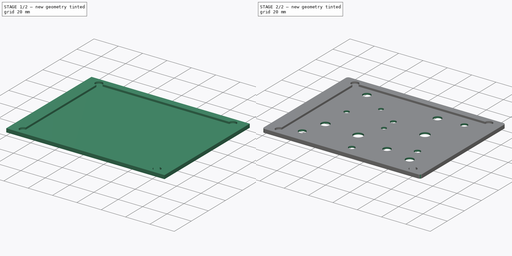
[diagram: build sequence overview — one tinted view per stage of 2, left to right]
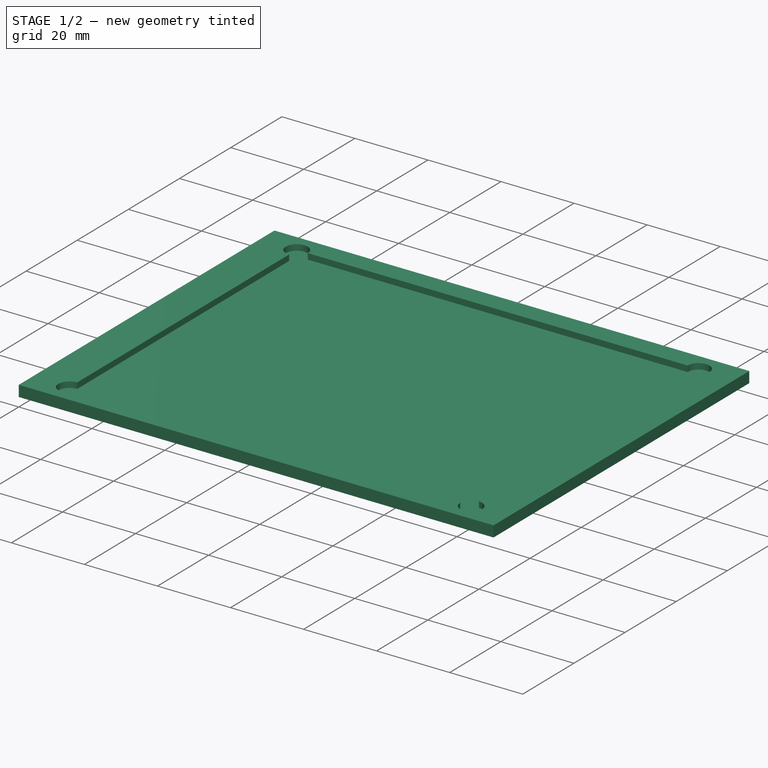
[diagram: stage 1 of 2 — iso view after this stage's code; geometry added in this stage tinted green]
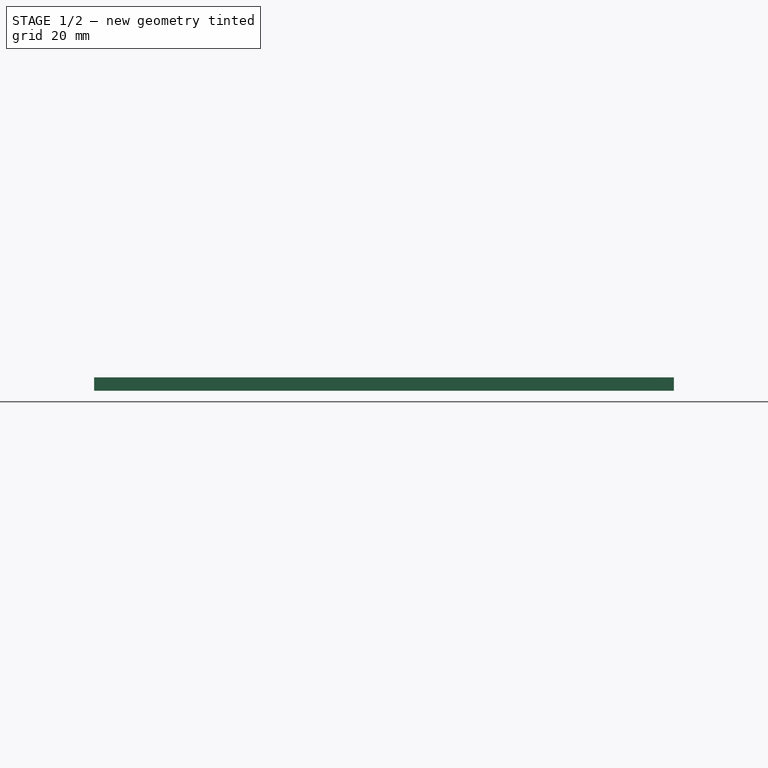
[diagram: stage 1 of 2 — front view after this stage's code; geometry added in this stage tinted green]
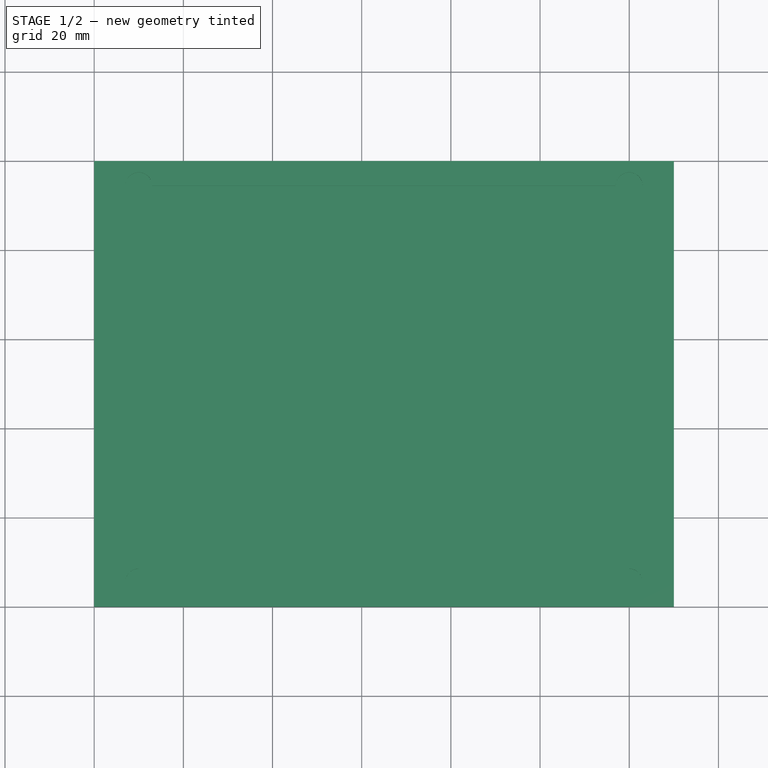
[diagram: stage 1 of 2 — top view after this stage's code; geometry added in this stage tinted green]
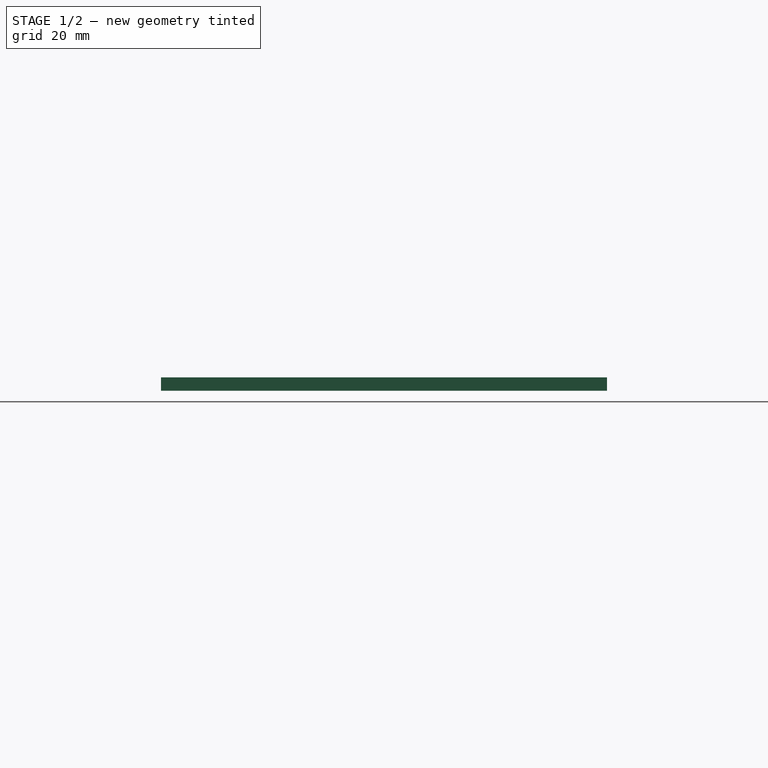
[diagram: stage 1 of 2 — right view after this stage's code; geometry added in this stage tinted green]
FCSTD DOCUMENT  (FreeCAD 0.20RUnknown)
Label: pcb-jig-507-807
License: All rights reserved
LicenseURL: http://en.wikipedia.org/wiki/All_rights_reserved
objects: Sketcher::SketchObject×3, PartDesign::Pocket×2, PartDesign::Pad×1, PartDesign::Fillet×1, PartDesign::Body×1
note: 12 computed .brp shape members not serialized (recipe doc carries the construction recipe); baked Part::Feature solids carry a one-line shape summary decoded from their .brp

FEATURE [Sketcher::SketchObject] Sketch
  FullyConstrained = true
  MapMode = 5
  Support = -> [XY_Plane]
  sketch-geometry (11):
    g0: LineSegment StartX=0 StartY=0 StartZ=0 EndX=130 EndY=0 EndZ=0
    g1: LineSegment StartX=130 StartY=0 StartZ=0 EndX=130 EndY=100 EndZ=0
    g2: LineSegment StartX=130 StartY=100 StartZ=0 EndX=0 EndY=100 EndZ=0
    g3: LineSegment StartX=0 StartY=100 StartZ=0 EndX=0 EndY=0 EndZ=0
    g4: LineSegment StartX=10 StartY=94.45 StartZ=0 EndX=120 EndY=94.45 EndZ=0
    g5: LineSegment StartX=120 StartY=94.45 StartZ=0 EndX=120 EndY=5.55 EndZ=0
    g6: LineSegment StartX=120 StartY=5.55 StartZ=0 EndX=10 EndY=5.55 EndZ=0
    g7: LineSegment StartX=10 StartY=5.55 StartZ=0 EndX=10 EndY=94.45 EndZ=0
    g8: LineSegment StartX=10 StartY=94.45 StartZ=0 EndX=0 EndY=100 EndZ=0
    g9: LineSegment StartX=120 StartY=94.45 StartZ=0 EndX=130 EndY=100 EndZ=0
    g10: LineSegment StartX=120 StartY=5.55 StartZ=0 EndX=130 EndY=0 EndZ=0
  constraints (29):
    c: Coincident(g0,g1)
    c: Coincident(g1,g2)
    c: Coincident(g2,g3)
    c: Coincident(g3,g0)
    c: Horizontal(g0)
    c: Horizontal(g2)
    c: Vertical(g1)
    c: Vertical(g3)
    c: Coincident(g0,g-1)
    c: DistanceY(g1,g1) = 100
    c: DistanceX(g0,g0) = 130
    c: Coincident(g4,g5)
    c: Coincident(g5,g6)
    c: Coincident(g6,g7)
    c: Coincident(g7,g4)
    c: Horizontal(g4)
    c: Horizontal(g6)
    c: Vertical(g5)
    c: Vertical(g7)
    c: DistanceX(g4,g4) = 110
    c: DistanceY(g7,g7) = 88.9
    c: Coincident(g8,g4)
    c: Coincident(g8,g2)
    c: Coincident(g9,g4)
    c: Coincident(g9,g1)
    c: Coincident(g10,g5)
    c: Coincident(g10,g0)
    c: Equal(g9,g10)
    c: Equal(g10,g8)
FEATURE [PartDesign::Pad] Pad
  Direction = (0,0,1)
  Length = 3
  Length2 = 10
  Profile = -> Sketch
  ReferenceAxis = -> Sketch [N_Axis]
  Type = 0
FEATURE [Sketcher::SketchObject] Sketch001
  ExternalGeometry = -> [Pad]
  FullyConstrained = true
  MapMode = 5
  Placement = pos=(0,0,3) rot=(0,0,1;0rad)
  Support = -> [Pad]
  sketch-geometry (15):
    g0: LineSegment StartX=10 StartY=94.45 StartZ=0 EndX=120 EndY=94.45 EndZ=0
    g1: LineSegment StartX=120 StartY=94.45 StartZ=0 EndX=120 EndY=5.55 EndZ=0
    g2: LineSegment StartX=120 StartY=5.55 StartZ=0 EndX=10 EndY=5.55 EndZ=0
    g3: LineSegment StartX=10 StartY=5.55 StartZ=0 EndX=10 EndY=94.45 EndZ=0
    g4: LineSegment StartX=120 StartY=94.45 StartZ=0 EndX=130 EndY=100 EndZ=0
    g5: LineSegment StartX=120 StartY=5.55 StartZ=0 EndX=130 EndY=0 EndZ=0
    g6: LineSegment StartX=0 StartY=0 StartZ=0 EndX=10 EndY=5.55 EndZ=0
    g7: ArcOfCircle CenterX=120 CenterY=5.55 CenterZ=0 NormalX=0 NormalY=0 NormalZ=1 AngleXU=0 Radius=3 StartAngle=3.14159 EndAngle=7.85398
    g8: LineSegment StartX=13 StartY=94.45 StartZ=0 EndX=117 EndY=94.45 EndZ=0
    g9: LineSegment StartX=120 StartY=91.45 StartZ=0 EndX=120 EndY=8.55 EndZ=0
    g10: LineSegment StartX=117 StartY=5.55 StartZ=0 EndX=13 EndY=5.55 EndZ=0
    g11: LineSegment StartX=10 StartY=8.55 StartZ=0 EndX=10 EndY=91.45 EndZ=0
    g12: ArcOfCircle CenterX=10 CenterY=94.45 CenterZ=0 NormalX=0 NormalY=0 NormalZ=1 AngleXU=0 Radius=3 StartAngle=2e-16 EndAngle=4.71239
    g13: ArcOfCircle CenterX=10 CenterY=5.55 CenterZ=0 NormalX=0 NormalY=0 NormalZ=1 AngleXU=0 Radius=3 StartAngle=1.5708 EndAngle=6.28319
    g14: ArcOfCircle CenterX=120 CenterY=94.45 CenterZ=0 NormalX=0 NormalY=0 NormalZ=1 AngleXU=0 Radius=3 StartAngle=4.71239 EndAngle=9.42478
  constraints (42):
    c: Coincident(g0,g1)
    c: Coincident(g1,g2)
    c: Coincident(g2,g3)
    c: Coincident(g3,g0)
    c: Horizontal(g0)
    c: Horizontal(g2)
    c: Vertical(g1)
    c: Vertical(g3)
    c: Coincident(g4,g0)
    c: Coincident(g4,g-3)
    c: Coincident(g5,g1)
    c: Coincident(g5,g-4)
    c: Coincident(g6,g-1)
    c: Coincident(g6,g2)
    c: Equal(g6,g5)
    c: Equal(g5,g4)
    c: DistanceX(g0,g0) = 110
    c: DistanceY(g1,g1) = 88.9
    c: PointOnObject(g8,g0)
    c: PointOnObject(g11,g3)
    c: PointOnObject(g11,g3)
    c: PointOnObject(g10,g2)
    c: Coincident(g7,g1)
    c: PointOnObject(g7,g2)
    c: PointOnObject(g7,g1)
    c: PointOnObject(g9,g1)
    c: PointOnObject(g8,g0)
    c: Coincident(g9,g7)
    c: Coincident(g10,g7)
    c: Coincident(g12,g0)
    c: Coincident(g12,g8)
    c: Coincident(g11,g12)
    c: Coincident(g13,g2)
    c: Coincident(g13,g10)
    c: Coincident(g13,g11)
    c: Coincident(g14,g0)
    c: Coincident(g14,g9)
    c: Coincident(g14,g8)
    c: Radius(g12) = 3
    c: Radius(g13) = 3
    c: Radius(g7) = 3
    c: Radius(g14) = 3
FEATURE [PartDesign::Pocket] Pocket
  BaseFeature = -> Pad
  Direction = (0,0,-1)
  Length = 1.6
  Length2 = 5
  Profile = -> Sketch001
  ReferenceAxis = -> Sketch001 [N_Axis]
  Type = 0
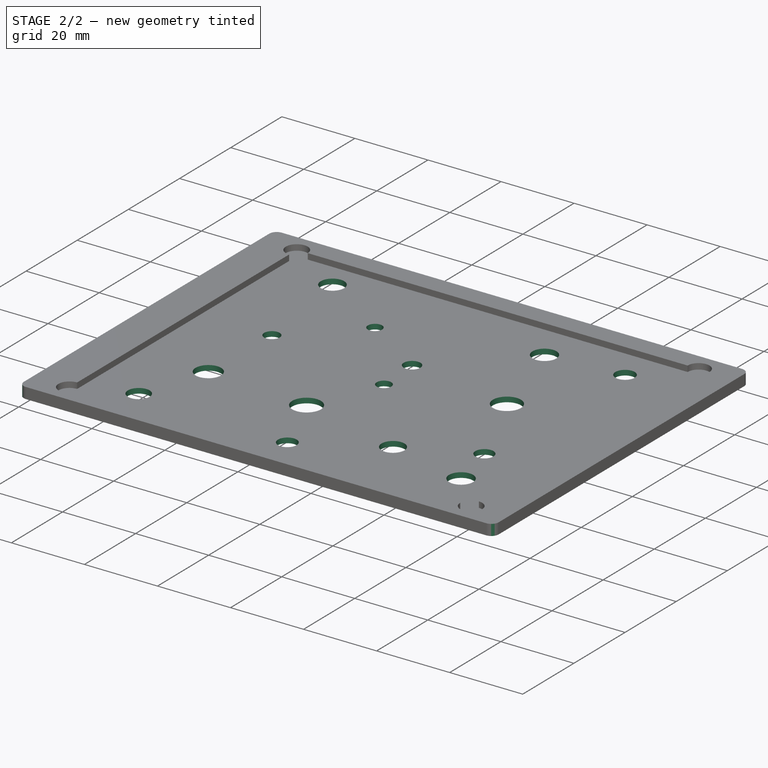
[diagram: stage 2 of 2 — iso view after this stage's code; geometry added in this stage tinted green]
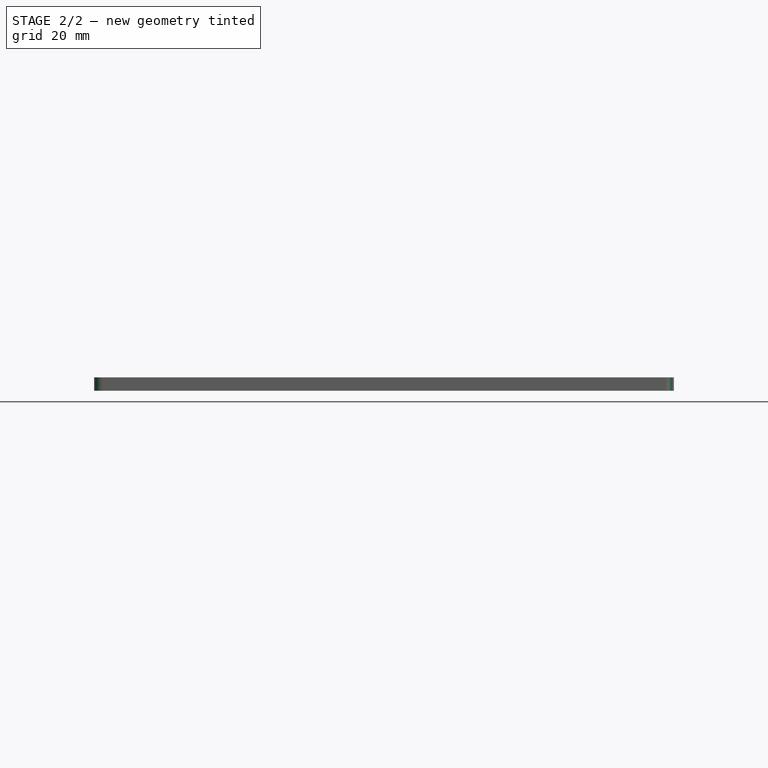
[diagram: stage 2 of 2 — front view after this stage's code; geometry added in this stage tinted green]
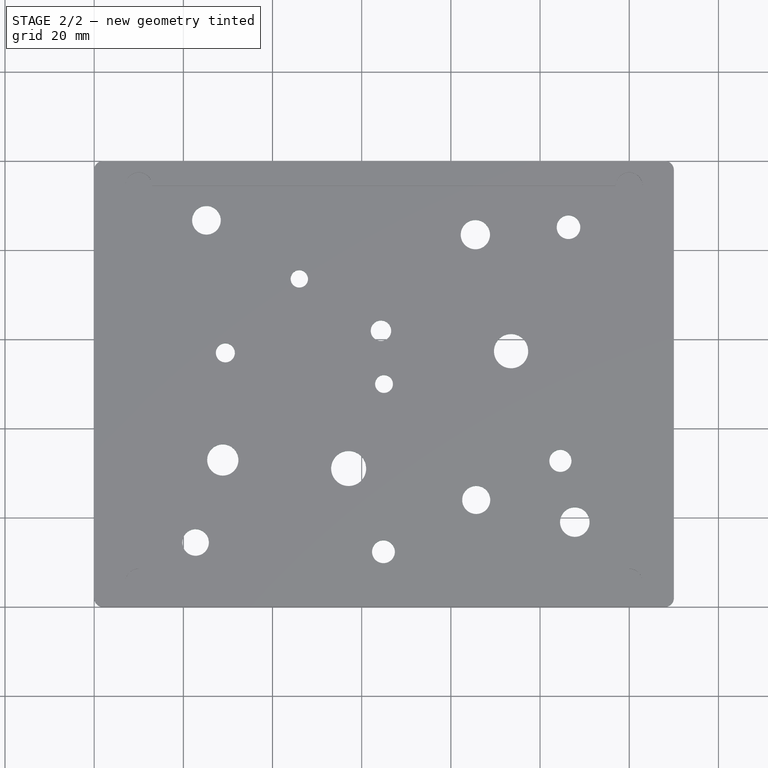
[diagram: stage 2 of 2 — top view after this stage's code; geometry added in this stage tinted green]
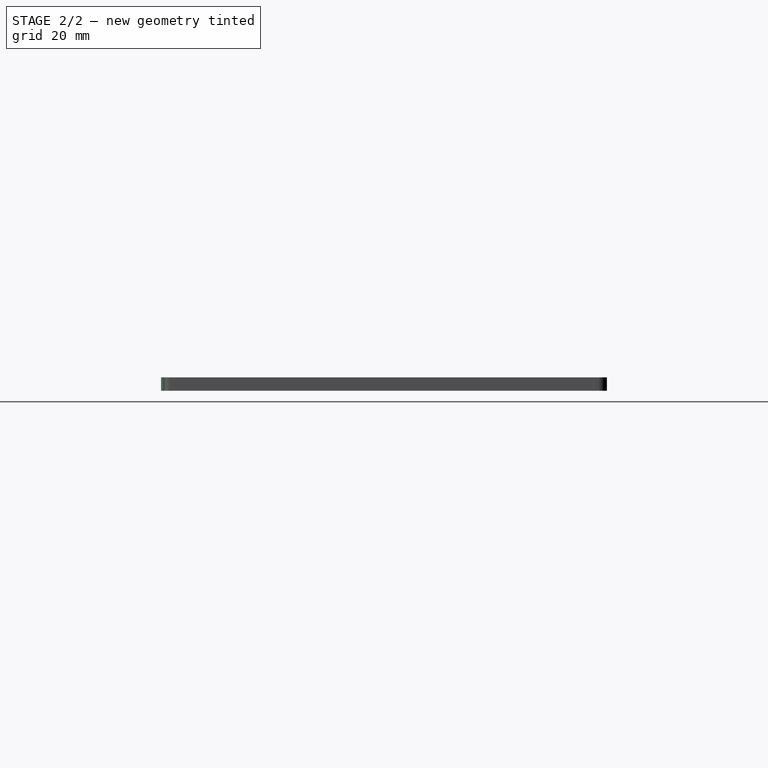
[diagram: stage 2 of 2 — right view after this stage's code; geometry added in this stage tinted green]
FEATURE [Sketcher::SketchObject] Sketch002
  ExternalGeometry = -> [Pocket]
  FullyConstrained = false
  MapMode = 5
  Placement = pos=(0,0,0) rot=(1,0,0;3.14159rad)
  Support = -> [Pocket]
  sketch-geometry (20):
    g0: LineSegment StartX=0 StartY=-50 StartZ=0 EndX=130 EndY=-50 EndZ=0
    g1: LineSegment StartX=0 StartY=0 StartZ=0 EndX=130 EndY=-50 EndZ=0
    g2: LineSegment StartX=130 StartY=-50 StartZ=0 EndX=0 EndY=-100 EndZ=0
    g3: Circle CenterX=65 CenterY=-50 CenterZ=0 NormalX=0 NormalY=0 NormalZ=1 AngleXU=0 Radius=2
    g4: LineSegment StartX=65 StartY=-50 StartZ=0 EndX=0 EndY=-100 EndZ=0
    g5: LineSegment StartX=65 StartY=-50 StartZ=0 EndX=130 EndY=-100 EndZ=0
    g6: Circle CenterX=28.8449 CenterY=-32.9588 CenterZ=0 NormalX=0 NormalY=0 NormalZ=1 AngleXU=0 Radius=3.50122
    g7: Circle CenterX=85.6805 CenterY=-23.9948 CenterZ=0 NormalX=0 NormalY=0 NormalZ=1 AngleXU=0 Radius=3.1455
    g8: Circle CenterX=93.5002 CenterY=-57.3715 CenterZ=0 NormalX=0 NormalY=0 NormalZ=1 AngleXU=0 Radius=3.83824
    g9: Circle CenterX=85.4898 CenterY=-83.5006 CenterZ=0 NormalX=0 NormalY=0 NormalZ=1 AngleXU=0 Radius=3.28132
    g10: Circle CenterX=64.3195 CenterY=-61.9488 CenterZ=0 NormalX=0 NormalY=0 NormalZ=1 AngleXU=0 Radius=2.28869
    g11: Circle CenterX=46.01 CenterY=-73.583 CenterZ=0 NormalX=0 NormalY=0 NormalZ=1 AngleXU=0 Radius=1.94501
    g12: Circle CenterX=29.417 CenterY=-56.99 CenterZ=0 NormalX=0 NormalY=0 NormalZ=1 AngleXU=0 Radius=2.13236
    g13: Circle CenterX=57.072 CenterY=-31.0516 CenterZ=0 NormalX=0 NormalY=0 NormalZ=1 AngleXU=0 Radius=3.92724
    g14: Circle CenterX=64.8788 CenterY=-12.3738 CenterZ=0 NormalX=0 NormalY=0 NormalZ=1 AngleXU=0 Radius=2.55883
    g15: Circle CenterX=22.7417 CenterY=-14.4586 CenterZ=0 NormalX=0 NormalY=0 NormalZ=1 AngleXU=0 Radius=2.9792
    g16: Circle CenterX=104.562 CenterY=-32.7681 CenterZ=0 NormalX=0 NormalY=0 NormalZ=1 AngleXU=0 Radius=2.47941
    g17: Circle CenterX=106.377 CenterY=-85.1693 CenterZ=0 NormalX=0 NormalY=0 NormalZ=1 AngleXU=0 Radius=2.64807
    g18: Circle CenterX=25.1783 CenterY=-86.7261 CenterZ=0 NormalX=0 NormalY=0 NormalZ=1 AngleXU=0 Radius=3.21275
    g19: Circle CenterX=107.792 CenterY=-19.0288 CenterZ=0 NormalX=0 NormalY=0 NormalZ=1 AngleXU=0 Radius=3.30964
  constraints (16):
    c: PointOnObject(g0,g-2)
    c: PointOnObject(g0,g-3)
    c: Horizontal(g0)
    c: Coincident(g1,g-1)
    c: Coincident(g1,g0)
    c: Coincident(g2,g0)
    c: Coincident(g2,g-4)
    c: Equal(g2,g1)
    c: PointOnObject(g3,g0)
    c: Coincident(g4,g3)
    c: Coincident(g4,g2)
    c: Coincident(g5,g3)
    c: Coincident(g5,g-4)
    c: Equal(g5,g4)
    c: Radius(g3) = 2
    c: Tangent(g17,g5)
FEATURE [PartDesign::Pocket] Pocket001
  BaseFeature = -> Pocket
  Direction = (0,0,1)
  Length = 5
  Length2 = 5
  Profile = -> Sketch002
  ReferenceAxis = -> Sketch002 [N_Axis]
  Type = 1
FEATURE [PartDesign::Fillet] Fillet
  Base = -> Pocket001 [Edge2,Edge1,Edge8,Edge5]
  BaseFeature = -> Pocket001
  Radius = 2
  SupportTransform = false
  UseAllEdges = false
FEATURE [PartDesign::Body] Body
  Group = -> [Sketch,Pad,Sketch001,Pocket,Sketch002,Pocket001,Fillet]
  Origin = -> Origin
  Tip = -> Fillet
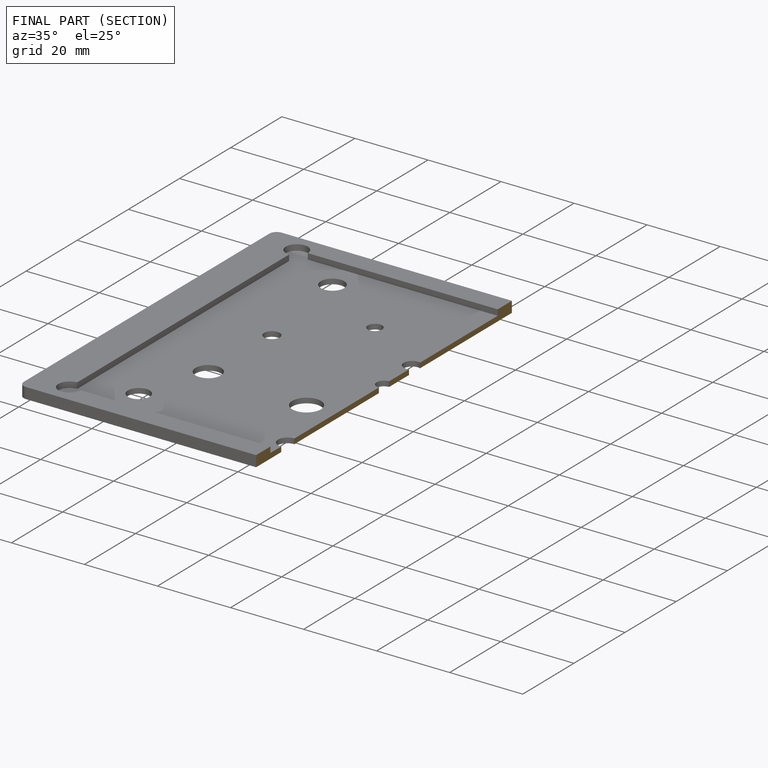
[diagram: finished part — half-section view (interior)]
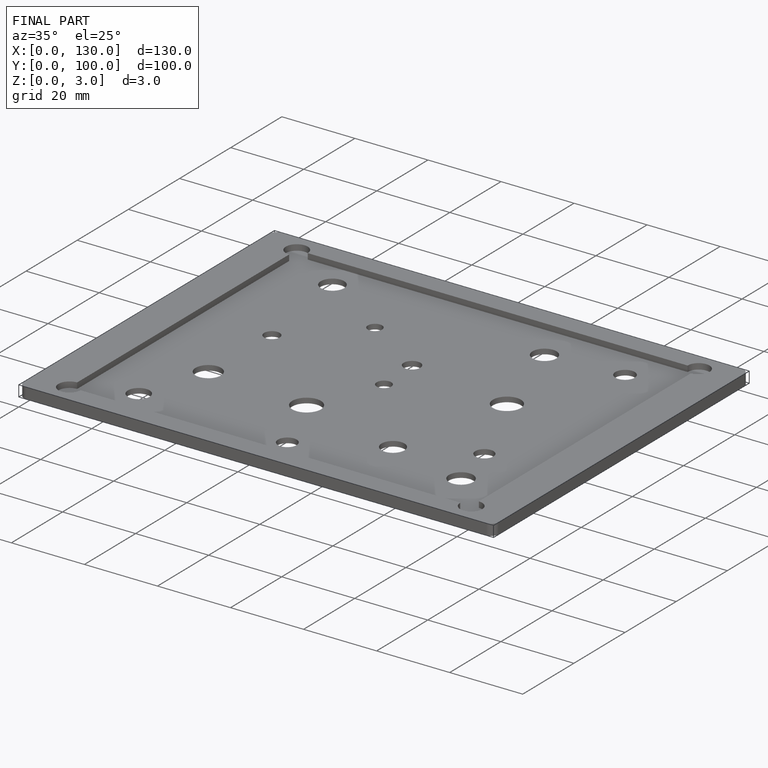
[diagram: finished part — iso view with bounding-box wireframe]
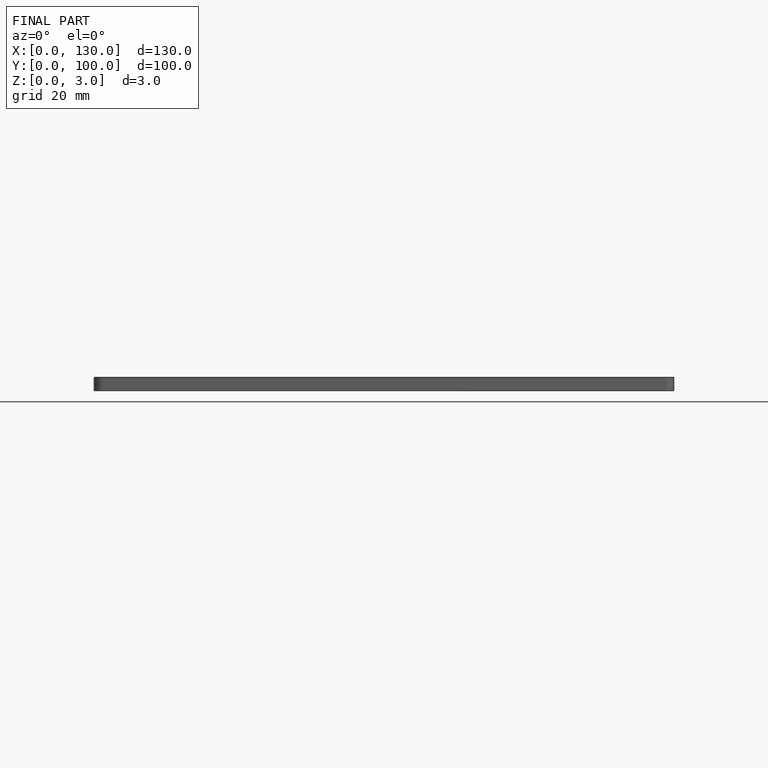
[diagram: finished part — front view with bounding-box wireframe]
